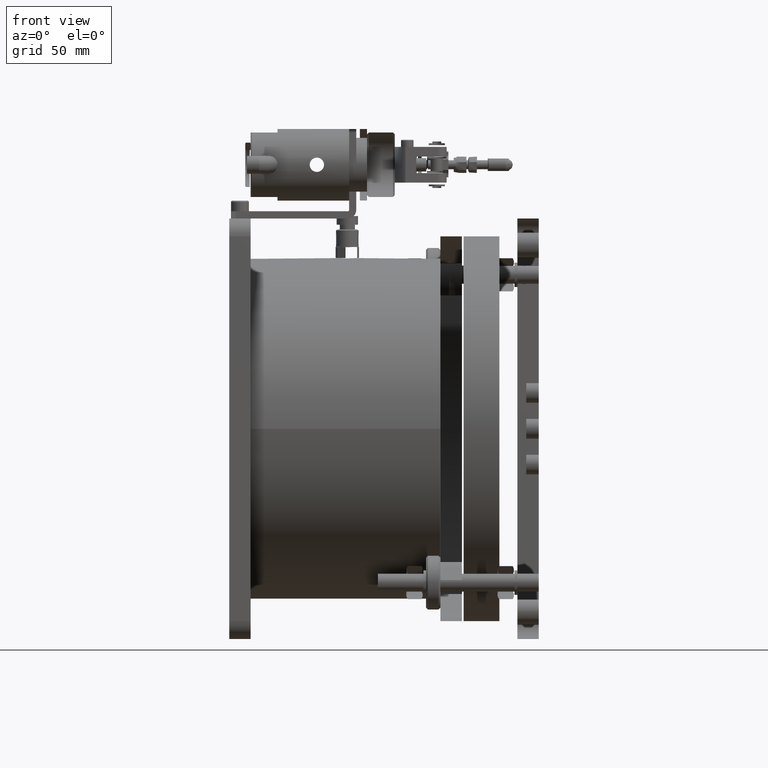
[diagram: clean part render]
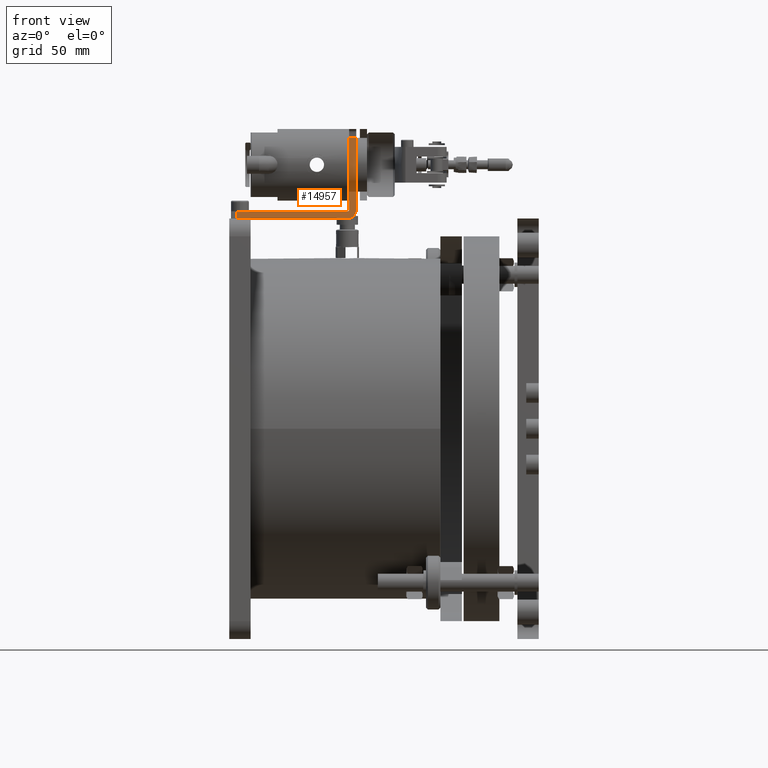
[diagram: same view with one face highlighted and labeled with its STEP entity id]
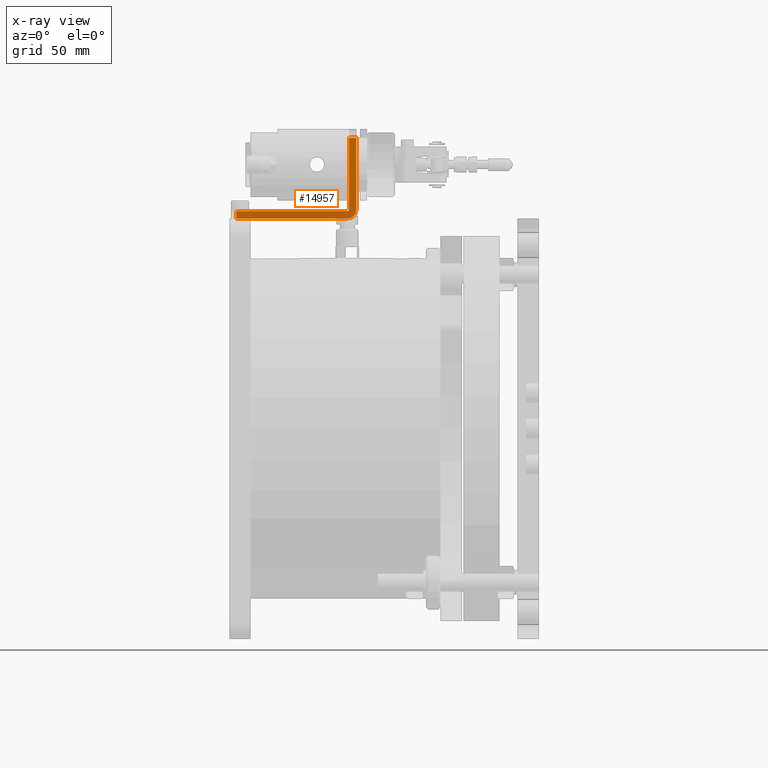
[diagram: x-ray of the same camera — body ghosted, the highlighted face saturated]
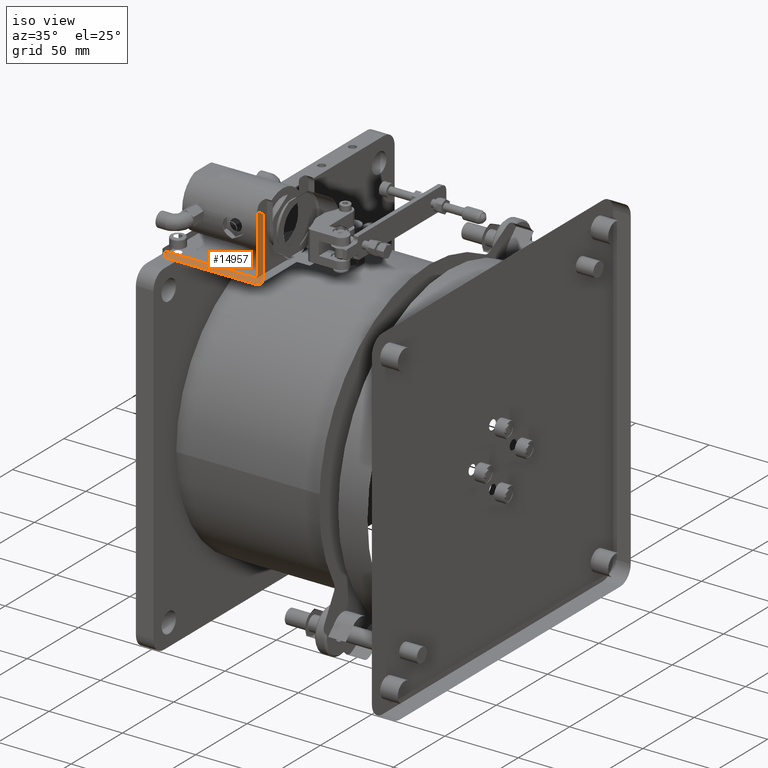
[diagram: same view with one face highlighted and labeled with its STEP entity id]
A machine part, front view. The second image highlights one B-rep face of the part: STEP entity #14957.
The next image is the same camera in x-ray: the body ghosted, the highlighted face saturated — about 0% of this face is hidden behind the body in this view.
A second angle (iso view) of the same face is appended — the face is thin or edge-on in the first view.
In plain terms, the highlighted planar face has unit normal (0, -1, 0).
Its self-contained STEP definition (entity closure, byte-faithful):
#952 = CARTESIAN_POINT ( 'NONE',  ( 472.4299721316713772, -94.99999999999992895, 713.8460016609062677 ) ) ;
#1890 = LINE ( 'NONE', #2269, #24714 ) ;
#2208 = CARTESIAN_POINT ( 'NONE',  ( 402.4299721316714340, -94.99999999999992895, 709.1094016609063146 ) ) ;
#2269 = CARTESIAN_POINT ( 'NONE',  ( 405.4299721316714340, -94.99999999999992895, 709.1094016609063146 ) ) ;
#2727 = CARTESIAN_POINT ( 'NONE',  ( 467.6933721316713672, -94.99999999999992895, 713.8460016609062677 ) ) ;
#2986 = CIRCLE ( 'NONE', #18405, 0.7365999999999761627 ) ;
#3272 = EDGE_CURVE ( 'NONE', #21007, #13744, #4516, .T. ) ;
#3384 = EDGE_CURVE ( 'NONE', #13744, #8109, #12623, .T. ) ;
#3612 = VERTEX_POINT ( 'NONE', #5895 ) ;
#4243 = FACE_OUTER_BOUND ( 'NONE', #11719, .T. ) ;
#4516 = LINE ( 'NONE', #14156, #17242 ) ;
#4690 = LINE ( 'NONE', #10520, #8186 ) ;
#4943 = AXIS2_PLACEMENT_3D ( 'NONE', #2208, #11729, #8177 ) ;
#5531 = CARTESIAN_POINT ( 'NONE',  ( 405.4299721316714340, -94.99999999999992895, 709.1094016609063146 ) ) ;
#5895 = CARTESIAN_POINT ( 'NONE',  ( 405.4299721316714340, -94.99999999999992895, 713.1094016609063146 ) ) ;
#6072 = VECTOR ( 'NONE', #21243, 1000.000000000000000 ) ;
#6277 = ORIENTED_EDGE ( 'NONE', *, *, #6968, .F. ) ;
#6671 = DIRECTION ( 'NONE',  ( 2.276784909277185655E-17, -1.000000000000000000, 1.110223024625156294E-16 ) ) ;
#6899 = VERTEX_POINT ( 'NONE', #19794 ) ;
#6968 = EDGE_CURVE ( 'NONE', #8109, #6899, #4690, .T. ) ;
#7196 = ORIENTED_EDGE ( 'NONE', *, *, #24518, .F. ) ;
#8109 = VERTEX_POINT ( 'NONE', #24991 ) ;
#8177 = DIRECTION ( 'NONE',  ( 0.000000000000000000, -1.110223024625156294E-16, -1.000000000000000000 ) ) ;
#8186 = VECTOR ( 'NONE', #22231, 1000.000000000000000 ) ;
#8372 = EDGE_CURVE ( 'NONE', #13957, #21007, #12254, .T. ) ;
#8597 = CARTESIAN_POINT ( 'NONE',  ( 472.4299721316714908, -94.99999999999991473, 754.1094016609063146 ) ) ;
#9459 = ORIENTED_EDGE ( 'NONE', *, *, #22606, .F. ) ;
#9663 = ORIENTED_EDGE ( 'NONE', *, *, #21720, .F. ) ;
#9841 = DIRECTION ( 'NONE',  ( 0.000000000000000000, 0.000000000000000000, 1.000000000000000000 ) ) ;
#10489 = VERTEX_POINT ( 'NONE', #5531 ) ;
#10520 = CARTESIAN_POINT ( 'NONE',  ( 468.4299721316714340, -94.99999999999991473, 713.1094016609062010 ) ) ;
#10579 = AXIS2_PLACEMENT_3D ( 'NONE', #2727, #6671, #10722 ) ;
#10722 = DIRECTION ( 'NONE',  ( 0.000000000000000000, 0.000000000000000000, 1.000000000000000000 ) ) ;
#10870 = ORIENTED_EDGE ( 'NONE', *, *, #13199, .T. ) ;
#11194 = LINE ( 'NONE', #11571, #6072 ) ;
#11571 = CARTESIAN_POINT ( 'NONE',  ( 402.4299721316714340, -94.99999999999992895, 709.1094016609063146 ) ) ;
#11719 = EDGE_LOOP ( 'NONE', ( #7196, #10870, #9663, #9459, #6277, #13412, #23880, #16102 ) ) ;
#11729 = DIRECTION ( 'NONE',  ( 2.276784909277185963E-17, -1.000000000000000000, 1.110223024625156294E-16 ) ) ;
#12202 = CARTESIAN_POINT ( 'NONE',  ( 467.6933721316713672, -94.99999999999992895, 709.1094016609063146 ) ) ;
#12254 = CIRCLE ( 'NONE', #10579, 4.736599999999979715 ) ;
#12499 = CARTESIAN_POINT ( 'NONE',  ( 467.6933721316713672, -94.99999999999992895, 713.1094016609063146 ) ) ;
#12623 = LINE ( 'NONE', #16334, #17638 ) ;
#12697 = VECTOR ( 'NONE', #20554, 1000.000000000000000 ) ;
#13036 = LINE ( 'NONE', #18909, #12697 ) ;
#13199 = EDGE_CURVE ( 'NONE', #10489, #3612, #1890, .T. ) ;
#13412 = ORIENTED_EDGE ( 'NONE', *, *, #3384, .F. ) ;
#13744 = VERTEX_POINT ( 'NONE', #8597 ) ;
#13957 = VERTEX_POINT ( 'NONE', #12202 ) ;
#14156 = CARTESIAN_POINT ( 'NONE',  ( 472.4299721316713772, -94.99999999999991473, 759.1094016609063146 ) ) ;
#14640 = DIRECTION ( 'NONE',  ( -0.000000000000000000, 2.618678221126727477E-16, 1.000000000000000000 ) ) ;
#14957 = ADVANCED_FACE ( 'NONE', ( #4243 ), #19874, .F. ) ;
#16102 = ORIENTED_EDGE ( 'NONE', *, *, #8372, .F. ) ;
#16200 = DIRECTION ( 'NONE',  ( -1.000000000000000000, -2.276784909277239273E-17, 5.962167056114298777E-33 ) ) ;
#16334 = CARTESIAN_POINT ( 'NONE',  ( 472.4299721316715477, -94.99999999999991473, 754.1094016609063146 ) ) ;
#16848 = VERTEX_POINT ( 'NONE', #12499 ) ;
#17242 = VECTOR ( 'NONE', #14640, 1000.000000000000000 ) ;
#17352 = DIRECTION ( 'NONE',  ( -2.276784909277185655E-17, 1.000000000000000000, -1.110223024625156294E-16 ) ) ;
#17638 = VECTOR ( 'NONE', #16200, 1000.000000000000000 ) ;
#18405 = AXIS2_PLACEMENT_3D ( 'NONE', #19135, #17352, #9841 ) ;
#18909 = CARTESIAN_POINT ( 'NONE',  ( 437.4299721316713772, -94.99999999999992895, 713.1094016609063146 ) ) ;
#19135 = CARTESIAN_POINT ( 'NONE',  ( 467.6933721316713672, -94.99999999999992895, 713.8460016609062677 ) ) ;
#19561 = DIRECTION ( 'NONE',  ( 3.473364927200039315E-17, 1.110223024625156294E-16, 1.000000000000000000 ) ) ;
#19794 = CARTESIAN_POINT ( 'NONE',  ( 468.4299721316713772, -94.99999999999991473, 713.8460016609062677 ) ) ;
#19874 = PLANE ( 'NONE',  #4943 ) ;
#20554 = DIRECTION ( 'NONE',  ( -1.000000000000000000, 3.856209715102963619E-33, 3.473364927200039315E-17 ) ) ;
#21007 = VERTEX_POINT ( 'NONE', #952 ) ;
#21243 = DIRECTION ( 'NONE',  ( 1.000000000000000000, 2.276784909277185963E-17, -2.527739028398629347E-33 ) ) ;
#21720 = EDGE_CURVE ( 'NONE', #16848, #3612, #13036, .T. ) ;
#22231 = DIRECTION ( 'NONE',  ( -3.504180601225612135E-15, 0.000000000000000000, -1.000000000000000000 ) ) ;
#22606 = EDGE_CURVE ( 'NONE', #6899, #16848, #2986, .T. ) ;
#23880 = ORIENTED_EDGE ( 'NONE', *, *, #3272, .F. ) ;
#24518 = EDGE_CURVE ( 'NONE', #10489, #13957, #11194, .T. ) ;
#24714 = VECTOR ( 'NONE', #19561, 1000.000000000000000 ) ;
#24991 = CARTESIAN_POINT ( 'NONE',  ( 468.4299721316716045, -94.99999999999991473, 754.1094016609063146 ) ) ;